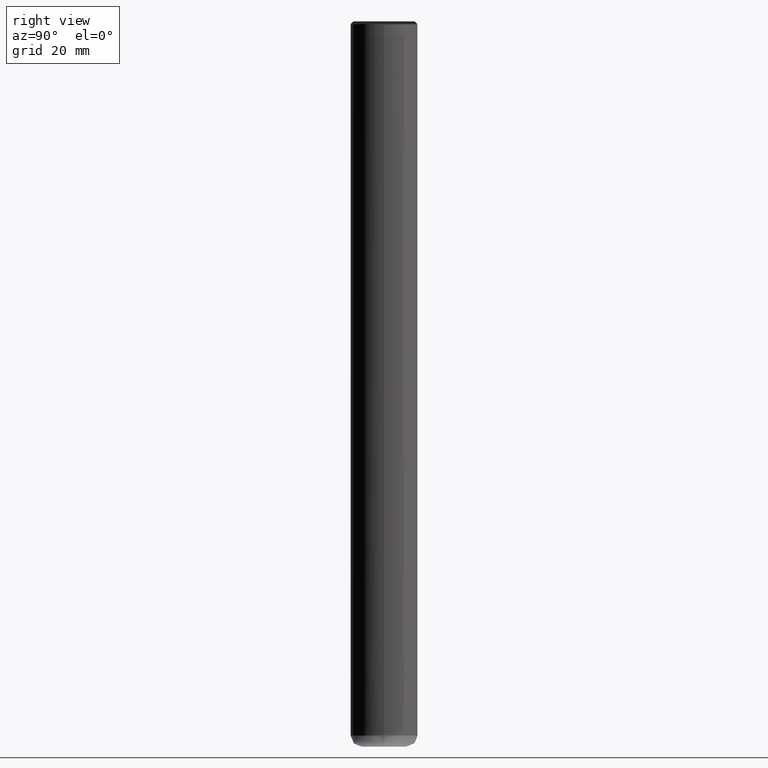
[diagram: clean part render]
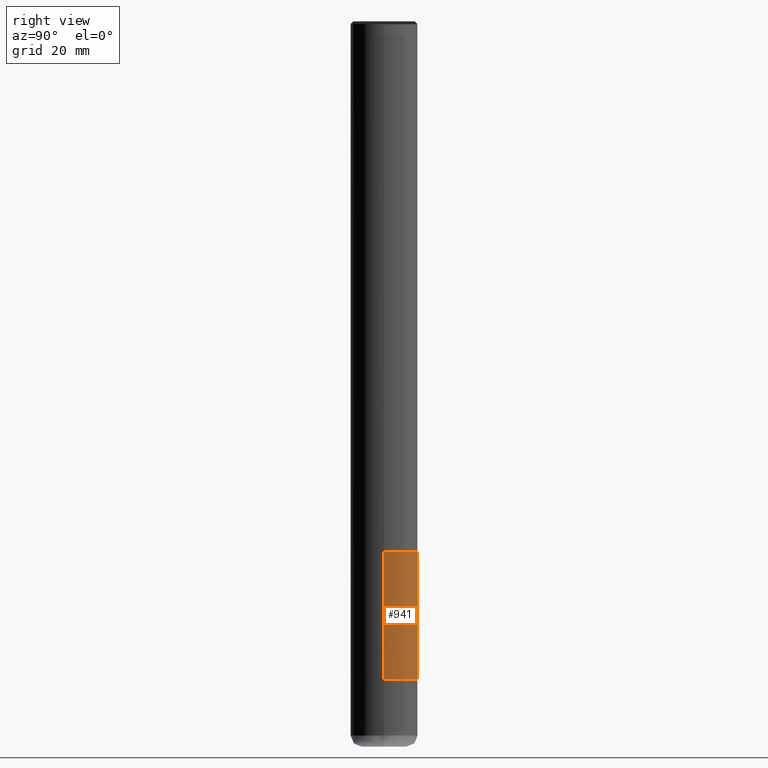
[diagram: same view with one face highlighted and labeled with its STEP entity id]
A machine part, right view. The second image highlights one B-rep face of the part: STEP entity #941.
In plain terms, the highlighted face is a freeform B-spline surface patch.
Its self-contained STEP definition (entity closure, byte-faithful):
#708=CARTESIAN_POINT('',(6.0,0.0,-23.0));
#709=CARTESIAN_POINT('',(6.0,6.0,-23.0));
#710=CARTESIAN_POINT('',(0.0,6.0,-23.0));
#711=CARTESIAN_POINT('',(-6.0,6.0,-23.0));
#712=CARTESIAN_POINT('',(-6.0,0.0,-23.0));
#726=CARTESIAN_POINT('',(6.0,0.0,0.0));
#727=CARTESIAN_POINT('',(6.0,6.0,0.0));
#728=CARTESIAN_POINT('',(0.0,6.0,0.0));
#729=CARTESIAN_POINT('',(-6.0,6.0,0.0));
#730=CARTESIAN_POINT('',(-6.0,0.0,0.0));
#922=(
BOUNDED_SURFACE()
B_SPLINE_SURFACE(1,2,(
(#708,#709,#710,#711,#712),
(#726,#727,#728,#729,#730)
), .UNSPECIFIED.,.F.,.F.,.F.)
B_SPLINE_SURFACE_WITH_KNOTS((2,2),(3,2,3),(
0.0,1.0),(
0.0,0.5,1.0), .UNSPECIFIED.)
GEOMETRIC_REPRESENTATION_ITEM()
RATIONAL_B_SPLINE_SURFACE(((1.0,0.707106781187,1.0,0.707106781187,1.0),
(1.0,0.707106781187,1.0,0.707106781187,1.0)
))
REPRESENTATION_ITEM('')
SURFACE()
);
#923=(
BOUNDED_CURVE()
B_SPLINE_CURVE(2,(#726,#727,#728,#729,#730),.UNSPECIFIED.,.F.,.F.)
B_SPLINE_CURVE_WITH_KNOTS((3,2,3),
(0.0,0.5,1.0),.UNSPECIFIED.)
CURVE()
GEOMETRIC_REPRESENTATION_ITEM()
RATIONAL_B_SPLINE_CURVE((1.0,0.707106781187,1.0,0.707106781187,1.0))
REPRESENTATION_ITEM('')
);
#924=(
BOUNDED_CURVE()
B_SPLINE_CURVE(1,(#730,#712),.UNSPECIFIED.,.F.,.F.)
B_SPLINE_CURVE_WITH_KNOTS((2,2),
(0.0,1.0),.UNSPECIFIED.)
CURVE()
GEOMETRIC_REPRESENTATION_ITEM()
RATIONAL_B_SPLINE_CURVE((1.0,1.0))
REPRESENTATION_ITEM('')
);
#925=(
BOUNDED_CURVE()
B_SPLINE_CURVE(2,(#712,#711,#710,#709,#708),.UNSPECIFIED.,.F.,.F.)
B_SPLINE_CURVE_WITH_KNOTS((3,2,3),
(0.0,0.5,1.0),.UNSPECIFIED.)
CURVE()
GEOMETRIC_REPRESENTATION_ITEM()
RATIONAL_B_SPLINE_CURVE((1.0,0.707106781187,1.0,0.707106781187,1.0))
REPRESENTATION_ITEM('')
);
#926=(
BOUNDED_CURVE()
B_SPLINE_CURVE(1,(#708,#726),.UNSPECIFIED.,.F.,.F.)
B_SPLINE_CURVE_WITH_KNOTS((2,2),
(0.0,1.0),.UNSPECIFIED.)
CURVE()
GEOMETRIC_REPRESENTATION_ITEM()
RATIONAL_B_SPLINE_CURVE((1.0,1.0))
REPRESENTATION_ITEM('')
);
#927=VERTEX_POINT('',#708);
#928=VERTEX_POINT('',#712);
#929=VERTEX_POINT('',#726);
#930=VERTEX_POINT('',#730);
#931=EDGE_CURVE('',#929,#930,#923,.T.);
#932=EDGE_CURVE('',#930,#928,#924,.T.);
#933=EDGE_CURVE('',#928,#927,#925,.T.);
#934=EDGE_CURVE('',#927,#929,#926,.T.);
#935=ORIENTED_EDGE('',*,*,#931,.T.);
#936=ORIENTED_EDGE('',*,*,#932,.T.);
#937=ORIENTED_EDGE('',*,*,#933,.T.);
#938=ORIENTED_EDGE('',*,*,#934,.T.);
#939=EDGE_LOOP('',(#935,#936,#937,#938));
#940=FACE_OUTER_BOUND('',#939,.T.);
#941=ADVANCED_FACE('',(#940),#922,.T.);